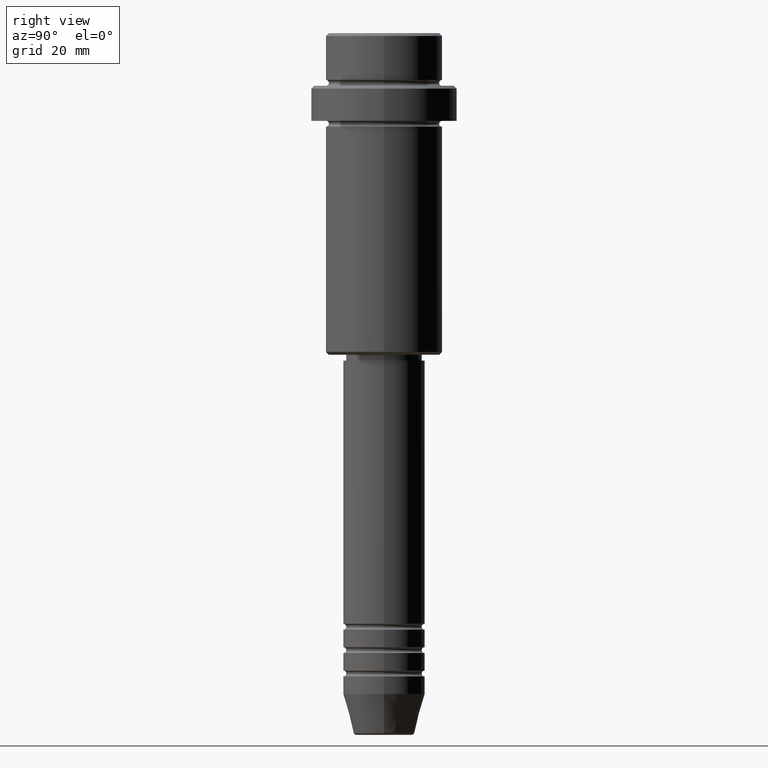
[diagram: clean part render]
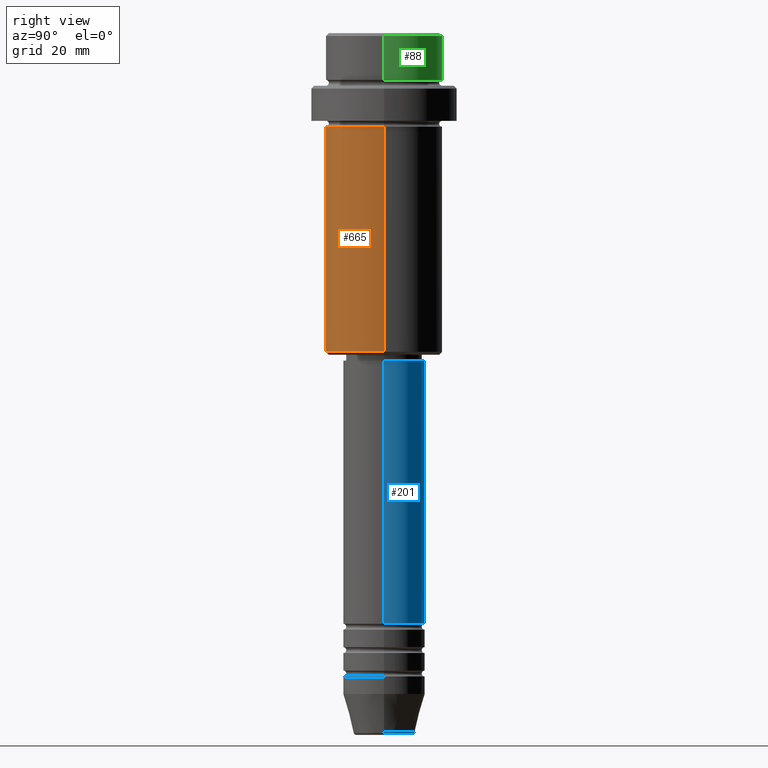
[diagram: same view with three faces highlighted in distinct colors, each labeled with its STEP entity id]
A machine part, right view with three faces highlighted in distinct colors.
Their STEP definitions:

[orange] entity #665 — the highlighted cylindrical surface (partial cylindrical patch) has radius 10 mm, axis along (-0, -0, 1).
#8 = ORIENTED_EDGE ( 'NONE', *, *, #633, .F. ) ;
#58 = LINE ( 'NONE', #888, #428 ) ;
#65 = EDGE_CURVE ( 'NONE', #486, #1097, #445, .T. ) ;
#115 = EDGE_CURVE ( 'NONE', #215, #994, #847, .T. ) ;
#157 = AXIS2_PLACEMENT_3D ( 'NONE', #723, #1377, #713 ) ;
#176 = ORIENTED_EDGE ( 'NONE', *, *, #115, .F. ) ;
#188 = CARTESIAN_POINT ( 'NONE',  ( 9.999999999999998224, 0.000000000000000000, -54.49999999999999289 ) ) ;
#215 = VERTEX_POINT ( 'NONE', #646 ) ;
#255 = CARTESIAN_POINT ( 'NONE',  ( 0.000000000000000000, 0.000000000000000000, 0.000000000000000000 ) ) ;
#338 = AXIS2_PLACEMENT_3D ( 'NONE', #255, #1262, #1139 ) ;
#358 = CARTESIAN_POINT ( 'NONE',  ( -9.999999999999998224, 1.224646799147353059E-15, 0.000000000000000000 ) ) ;
#369 = CYLINDRICAL_SURFACE ( 'NONE', #338, 9.999999999999998224 ) ;
#428 = VECTOR ( 'NONE', #1331, 1000.000000000000000 ) ;
#445 = CIRCLE ( 'NONE', #157, 9.999999999999998224 ) ;
#486 = VERTEX_POINT ( 'NONE', #699 ) ;
#518 = DIRECTION ( 'NONE',  ( -0.000000000000000000, -0.000000000000000000, 1.000000000000000000 ) ) ;
#535 = EDGE_LOOP ( 'NONE', ( #8, #1072, #640, #176 ) ) ;
#633 = EDGE_CURVE ( 'NONE', #486, #215, #886, .T. ) ;
#640 = ORIENTED_EDGE ( 'NONE', *, *, #707, .T. ) ;
#646 = CARTESIAN_POINT ( 'NONE',  ( -9.999999999999998224, 1.224646799147353059E-15, -16.00000000000000000 ) ) ;
#665 = ADVANCED_FACE ( 'NONE', ( #1341 ), #369, .T. ) ;
#699 = CARTESIAN_POINT ( 'NONE',  ( -9.999999999999998224, 1.224646799147353059E-15, -54.49999999999999289 ) ) ;
#707 = EDGE_CURVE ( 'NONE', #1097, #994, #58, .T. ) ;
#713 = DIRECTION ( 'NONE',  ( -1.000000000000000000, 0.000000000000000000, 0.000000000000000000 ) ) ;
#721 = VECTOR ( 'NONE', #1237, 1000.000000000000000 ) ;
#723 = CARTESIAN_POINT ( 'NONE',  ( 0.000000000000000000, 0.000000000000000000, -54.49999999999999289 ) ) ;
#842 = CARTESIAN_POINT ( 'NONE',  ( 0.000000000000000000, 0.000000000000000000, -16.00000000000000000 ) ) ;
#847 = CIRCLE ( 'NONE', #1255, 9.999999999999998224 ) ;
#886 = LINE ( 'NONE', #358, #721 ) ;
#888 = CARTESIAN_POINT ( 'NONE',  ( 9.999999999999998224, 0.000000000000000000, 0.000000000000000000 ) ) ;
#928 = DIRECTION ( 'NONE',  ( 1.000000000000000000, 0.000000000000000000, 0.000000000000000000 ) ) ;
#975 = CARTESIAN_POINT ( 'NONE',  ( 9.999999999999998224, 0.000000000000000000, -16.00000000000000000 ) ) ;
#994 = VERTEX_POINT ( 'NONE', #975 ) ;
#1072 = ORIENTED_EDGE ( 'NONE', *, *, #65, .T. ) ;
#1097 = VERTEX_POINT ( 'NONE', #188 ) ;
#1139 = DIRECTION ( 'NONE',  ( 1.000000000000000000, 0.000000000000000000, 0.000000000000000000 ) ) ;
#1237 = DIRECTION ( 'NONE',  ( -0.000000000000000000, -0.000000000000000000, 1.000000000000000000 ) ) ;
#1255 = AXIS2_PLACEMENT_3D ( 'NONE', #842, #518, #928 ) ;
#1262 = DIRECTION ( 'NONE',  ( -0.000000000000000000, -0.000000000000000000, 1.000000000000000000 ) ) ;
#1331 = DIRECTION ( 'NONE',  ( -0.000000000000000000, -0.000000000000000000, 1.000000000000000000 ) ) ;
#1341 = FACE_OUTER_BOUND ( 'NONE', #535, .T. ) ;
#1377 = DIRECTION ( 'NONE',  ( -0.000000000000000000, -0.000000000000000000, 1.000000000000000000 ) ) ;

[blue] entity #201 — the highlighted cylindrical surface (partial cylindrical patch) has radius 7 mm, axis along (-0, -0, 1).
#21 = DIRECTION ( 'NONE',  ( 1.000000000000000000, 0.000000000000000000, 0.000000000000000000 ) ) ;
#24 = DIRECTION ( 'NONE',  ( -0.000000000000000000, -0.000000000000000000, 1.000000000000000000 ) ) ;
#56 = EDGE_CURVE ( 'NONE', #465, #119, #360, .T. ) ;
#90 = DIRECTION ( 'NONE',  ( 1.000000000000000000, 0.000000000000000000, 0.000000000000000000 ) ) ;
#99 = EDGE_CURVE ( 'NONE', #1147, #891, #607, .T. ) ;
#119 = VERTEX_POINT ( 'NONE', #406 ) ;
#181 = AXIS2_PLACEMENT_3D ( 'NONE', #554, #1209, #21 ) ;
#201 = ADVANCED_FACE ( 'NONE', ( #321 ), #540, .T. ) ;
#233 = ORIENTED_EDGE ( 'NONE', *, *, #1417, .F. ) ;
#321 = FACE_OUTER_BOUND ( 'NONE', #1176, .T. ) ;
#360 = CIRCLE ( 'NONE', #1017, 7.000000000000000000 ) ;
#370 = CARTESIAN_POINT ( 'NONE',  ( -7.000000000000000000, 8.572527594031473190E-16, -56.00000000000002132 ) ) ;
#404 = VECTOR ( 'NONE', #1171, 1000.000000000000000 ) ;
#406 = CARTESIAN_POINT ( 'NONE',  ( -7.000000000000000000, 8.572527594031473190E-16, -100.9999999999999005 ) ) ;
#457 = CARTESIAN_POINT ( 'NONE',  ( 7.000000000000000000, 0.000000000000000000, -100.9999999999999005 ) ) ;
#465 = VERTEX_POINT ( 'NONE', #457 ) ;
#492 = AXIS2_PLACEMENT_3D ( 'NONE', #823, #620, #90 ) ;
#537 = ORIENTED_EDGE ( 'NONE', *, *, #99, .F. ) ;
#540 = CYLINDRICAL_SURFACE ( 'NONE', #181, 7.000000000000000000 ) ;
#549 = CARTESIAN_POINT ( 'NONE',  ( 7.000000000000000000, 0.000000000000000000, -56.00000000000002132 ) ) ;
#554 = CARTESIAN_POINT ( 'NONE',  ( 0.000000000000000000, 0.000000000000000000, 0.000000000000000000 ) ) ;
#607 = CIRCLE ( 'NONE', #492, 7.000000000000000000 ) ;
#620 = DIRECTION ( 'NONE',  ( -0.000000000000000000, -0.000000000000000000, 1.000000000000000000 ) ) ;
#668 = VECTOR ( 'NONE', #24, 1000.000000000000000 ) ;
#670 = ORIENTED_EDGE ( 'NONE', *, *, #1194, .T. ) ;
#742 = LINE ( 'NONE', #861, #404 ) ;
#804 = LINE ( 'NONE', #995, #668 ) ;
#823 = CARTESIAN_POINT ( 'NONE',  ( 0.000000000000000000, 0.000000000000000000, -56.00000000000002132 ) ) ;
#834 = DIRECTION ( 'NONE',  ( -0.000000000000000000, -0.000000000000000000, 1.000000000000000000 ) ) ;
#861 = CARTESIAN_POINT ( 'NONE',  ( 7.000000000000000000, 0.000000000000000000, 0.000000000000000000 ) ) ;
#891 = VERTEX_POINT ( 'NONE', #370 ) ;
#995 = CARTESIAN_POINT ( 'NONE',  ( -7.000000000000000000, 8.572527594031473190E-16, 0.000000000000000000 ) ) ;
#1017 = AXIS2_PLACEMENT_3D ( 'NONE', #1274, #834, #1170 ) ;
#1147 = VERTEX_POINT ( 'NONE', #549 ) ;
#1170 = DIRECTION ( 'NONE',  ( 1.000000000000000000, 0.000000000000000000, 0.000000000000000000 ) ) ;
#1171 = DIRECTION ( 'NONE',  ( -0.000000000000000000, -0.000000000000000000, 1.000000000000000000 ) ) ;
#1176 = EDGE_LOOP ( 'NONE', ( #1304, #670, #537, #233 ) ) ;
#1194 = EDGE_CURVE ( 'NONE', #119, #891, #804, .T. ) ;
#1209 = DIRECTION ( 'NONE',  ( -0.000000000000000000, -0.000000000000000000, 1.000000000000000000 ) ) ;
#1274 = CARTESIAN_POINT ( 'NONE',  ( 0.000000000000000000, 0.000000000000000000, -100.9999999999999005 ) ) ;
#1304 = ORIENTED_EDGE ( 'NONE', *, *, #56, .T. ) ;
#1417 = EDGE_CURVE ( 'NONE', #465, #1147, #742, .T. ) ;

[green] entity #88 — the highlighted cylindrical surface (partial cylindrical patch) has radius 10 mm, axis along (-0, -0, 1).
#41 = DIRECTION ( 'NONE',  ( 1.000000000000000000, 0.000000000000000000, 0.000000000000000000 ) ) ;
#72 = EDGE_CURVE ( 'NONE', #613, #1073, #954, .T. ) ;
#75 = DIRECTION ( 'NONE',  ( -0.000000000000000000, -0.000000000000000000, 1.000000000000000000 ) ) ;
#88 = ADVANCED_FACE ( 'NONE', ( #303 ), #294, .T. ) ;
#221 = AXIS2_PLACEMENT_3D ( 'NONE', #573, #1239, #41 ) ;
#277 = VERTEX_POINT ( 'NONE', #770 ) ;
#294 = CYLINDRICAL_SURFACE ( 'NONE', #425, 9.999999999999998224 ) ;
#303 = FACE_OUTER_BOUND ( 'NONE', #1269, .T. ) ;
#395 = CARTESIAN_POINT ( 'NONE',  ( 9.999999999999998224, 0.000000000000000000, 0.000000000000000000 ) ) ;
#402 = EDGE_CURVE ( 'NONE', #969, #1073, #1367, .T. ) ;
#425 = AXIS2_PLACEMENT_3D ( 'NONE', #943, #75, #1158 ) ;
#447 = CIRCLE ( 'NONE', #892, 9.999999999999998224 ) ;
#543 = EDGE_CURVE ( 'NONE', #277, #969, #641, .T. ) ;
#573 = CARTESIAN_POINT ( 'NONE',  ( 0.000000000000000000, 0.000000000000000000, -0.4999999999999970024 ) ) ;
#587 = CARTESIAN_POINT ( 'NONE',  ( 9.999999999999998224, 0.000000000000000000, -7.999999999999998224 ) ) ;
#613 = VERTEX_POINT ( 'NONE', #587 ) ;
#641 = LINE ( 'NONE', #1080, #1407 ) ;
#648 = CARTESIAN_POINT ( 'NONE',  ( 0.000000000000000000, 0.000000000000000000, -7.999999999999998224 ) ) ;
#658 = ORIENTED_EDGE ( 'NONE', *, *, #543, .T. ) ;
#664 = ORIENTED_EDGE ( 'NONE', *, *, #72, .F. ) ;
#770 = CARTESIAN_POINT ( 'NONE',  ( -9.999999999999998224, 1.224646799147353059E-15, -7.999999999999998224 ) ) ;
#892 = AXIS2_PLACEMENT_3D ( 'NONE', #648, #1396, #1077 ) ;
#943 = CARTESIAN_POINT ( 'NONE',  ( 0.000000000000000000, 0.000000000000000000, 0.000000000000000000 ) ) ;
#948 = DIRECTION ( 'NONE',  ( -0.000000000000000000, -0.000000000000000000, 1.000000000000000000 ) ) ;
#954 = LINE ( 'NONE', #395, #1037 ) ;
#969 = VERTEX_POINT ( 'NONE', #1272 ) ;
#972 = DIRECTION ( 'NONE',  ( -0.000000000000000000, -0.000000000000000000, 1.000000000000000000 ) ) ;
#1037 = VECTOR ( 'NONE', #948, 1000.000000000000000 ) ;
#1073 = VERTEX_POINT ( 'NONE', #1286 ) ;
#1077 = DIRECTION ( 'NONE',  ( 1.000000000000000000, 0.000000000000000000, 0.000000000000000000 ) ) ;
#1080 = CARTESIAN_POINT ( 'NONE',  ( -9.999999999999998224, 1.224646799147353059E-15, 0.000000000000000000 ) ) ;
#1158 = DIRECTION ( 'NONE',  ( 1.000000000000000000, 0.000000000000000000, 0.000000000000000000 ) ) ;
#1239 = DIRECTION ( 'NONE',  ( 0.000000000000000000, 0.000000000000000000, -1.000000000000000000 ) ) ;
#1269 = EDGE_LOOP ( 'NONE', ( #1334, #658, #1325, #664 ) ) ;
#1272 = CARTESIAN_POINT ( 'NONE',  ( -9.999999999999998224, 1.224646799147353059E-15, -0.4999999999999970024 ) ) ;
#1286 = CARTESIAN_POINT ( 'NONE',  ( 9.999999999999998224, 0.000000000000000000, -0.4999999999999970024 ) ) ;
#1325 = ORIENTED_EDGE ( 'NONE', *, *, #402, .T. ) ;
#1334 = ORIENTED_EDGE ( 'NONE', *, *, #1336, .T. ) ;
#1336 = EDGE_CURVE ( 'NONE', #613, #277, #447, .T. ) ;
#1367 = CIRCLE ( 'NONE', #221, 9.999999999999998224 ) ;
#1396 = DIRECTION ( 'NONE',  ( -0.000000000000000000, -0.000000000000000000, 1.000000000000000000 ) ) ;
#1407 = VECTOR ( 'NONE', #972, 1000.000000000000000 ) ;